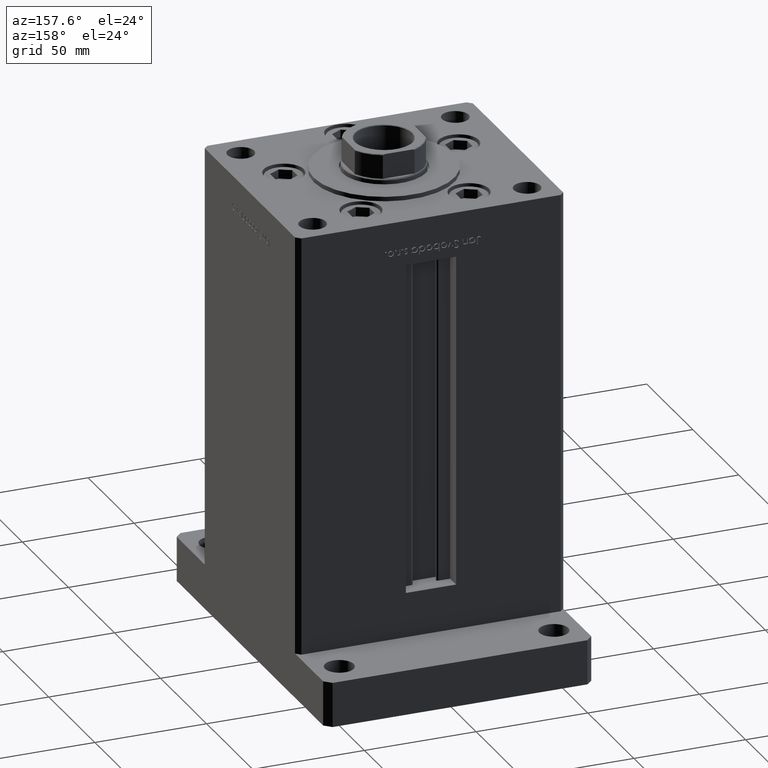
[diagram: clean part render]
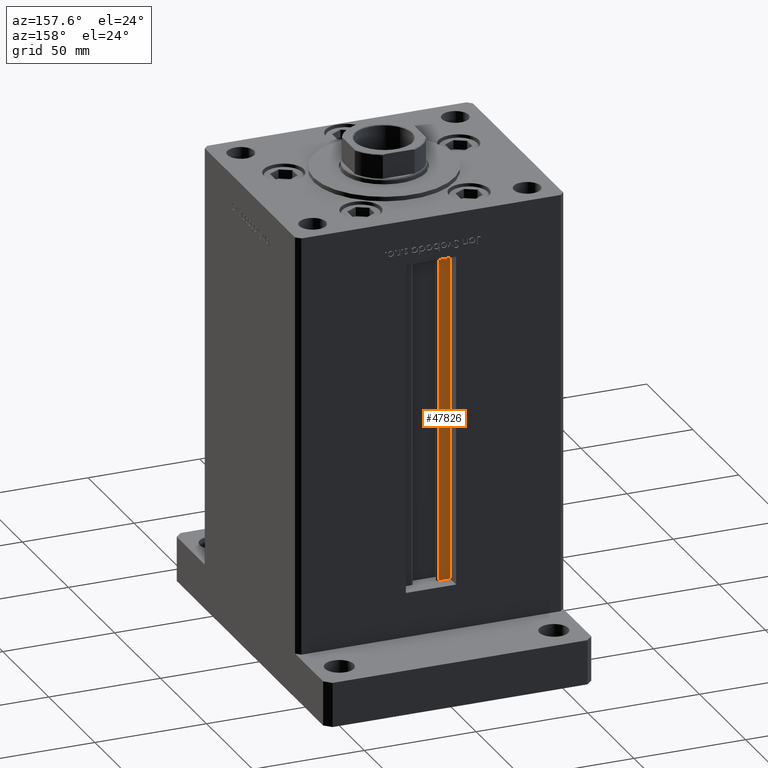
[diagram: same view with one face highlighted and labeled with its STEP entity id]
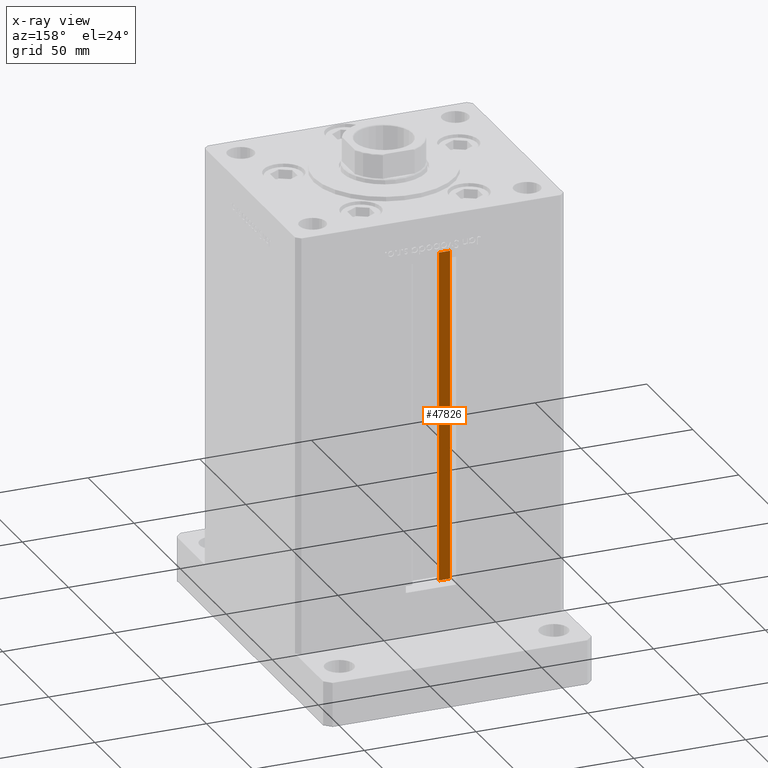
[diagram: x-ray of the same camera — body ghosted, the highlighted face saturated]
A machine part, auxiliary view. The second image highlights one B-rep face of the part: STEP entity #47826.
The next image is the same camera in x-ray: the body ghosted, the highlighted face saturated — about 0% of this face is hidden behind the body in this view.
In plain terms, the highlighted planar face has unit normal (0, -1, 0).
Its self-contained STEP definition (entity closure, byte-faithful):
#754 = CARTESIAN_POINT ( 'NONE',  ( -6.183333333334001480, 44.50000000000000000, 0.000000000000000000 ) ) ;
#1100 = CARTESIAN_POINT ( 'NONE',  ( -11.25000000000000178, 44.50000000000000000, 0.000000000000000000 ) ) ;
#2502 = DIRECTION ( 'NONE',  ( -0.000000000000000000, -0.000000000000000000, 1.000000000000000000 ) ) ;
#4562 = ORIENTED_EDGE ( 'NONE', *, *, #36624, .T. ) ;
#5792 = LINE ( 'NONE', #26372, #38712 ) ;
#7373 = CARTESIAN_POINT ( 'NONE',  ( -6.183333333334001480, 44.50000000000000000, 0.000000000000000000 ) ) ;
#7427 = CARTESIAN_POINT ( 'NONE',  ( -6.183333333334001480, 44.50000000000000000, 148.5000000000000000 ) ) ;
#7904 = VERTEX_POINT ( 'NONE', #40739 ) ;
#10225 = LINE ( 'NONE', #31590, #29573 ) ;
#13469 = LINE ( 'NONE', #754, #25817 ) ;
#16067 = FACE_OUTER_BOUND ( 'NONE', #19007, .T. ) ;
#16871 = CARTESIAN_POINT ( 'NONE',  ( -6.183333333334001480, 44.50000000000000000, 0.000000000000000000 ) ) ;
#18298 = VERTEX_POINT ( 'NONE', #1100 ) ;
#19007 = EDGE_LOOP ( 'NONE', ( #41436, #28614, #4562, #26481 ) ) ;
#20123 = DIRECTION ( 'NONE',  ( 0.000000000000000000, -1.000000000000000000, -0.000000000000000000 ) ) ;
#20803 = EDGE_CURVE ( 'NONE', #23599, #7904, #5792, .T. ) ;
#22332 = DIRECTION ( 'NONE',  ( -1.000000000000000000, 0.000000000000000000, 0.000000000000000000 ) ) ;
#23599 = VERTEX_POINT ( 'NONE', #7427 ) ;
#25817 = VECTOR ( 'NONE', #46557, 1000.000000000000000 ) ;
#26372 = CARTESIAN_POINT ( 'NONE',  ( 0.000000000000000000, 44.50000000000000000, 148.5000000000000000 ) ) ;
#26481 = ORIENTED_EDGE ( 'NONE', *, *, #20803, .F. ) ;
#27684 = LINE ( 'NONE', #7373, #45019 ) ;
#28442 = EDGE_CURVE ( 'NONE', #18298, #48048, #13469, .T. ) ;
#28518 = DIRECTION ( 'NONE',  ( 0.000000000000000000, 0.000000000000000000, -1.000000000000000000 ) ) ;
#28614 = ORIENTED_EDGE ( 'NONE', *, *, #28442, .F. ) ;
#29573 = VECTOR ( 'NONE', #38931, 1000.000000000000000 ) ;
#31590 = CARTESIAN_POINT ( 'NONE',  ( -11.25000000000000178, 44.50000000000000000, 0.000000000000000000 ) ) ;
#31835 = EDGE_CURVE ( 'NONE', #48048, #23599, #27684, .T. ) ;
#32606 = PLANE ( 'NONE',  #35037 ) ;
#35037 = AXIS2_PLACEMENT_3D ( 'NONE', #52964, #20123, #28518 ) ;
#36624 = EDGE_CURVE ( 'NONE', #18298, #7904, #10225, .T. ) ;
#38712 = VECTOR ( 'NONE', #22332, 1000.000000000000000 ) ;
#38931 = DIRECTION ( 'NONE',  ( -0.000000000000000000, -0.000000000000000000, 1.000000000000000000 ) ) ;
#40739 = CARTESIAN_POINT ( 'NONE',  ( -11.25000000000000178, 44.50000000000000000, 148.5000000000000000 ) ) ;
#41436 = ORIENTED_EDGE ( 'NONE', *, *, #31835, .F. ) ;
#45019 = VECTOR ( 'NONE', #2502, 1000.000000000000000 ) ;
#46557 = DIRECTION ( 'NONE',  ( 1.000000000000000000, -0.000000000000000000, -0.000000000000000000 ) ) ;
#47826 = ADVANCED_FACE ( 'NONE', ( #16067 ), #32606, .F. ) ;
#48048 = VERTEX_POINT ( 'NONE', #16871 ) ;
#52964 = CARTESIAN_POINT ( 'NONE',  ( -6.183333333334001480, 44.50000000000000000, 0.000000000000000000 ) ) ;